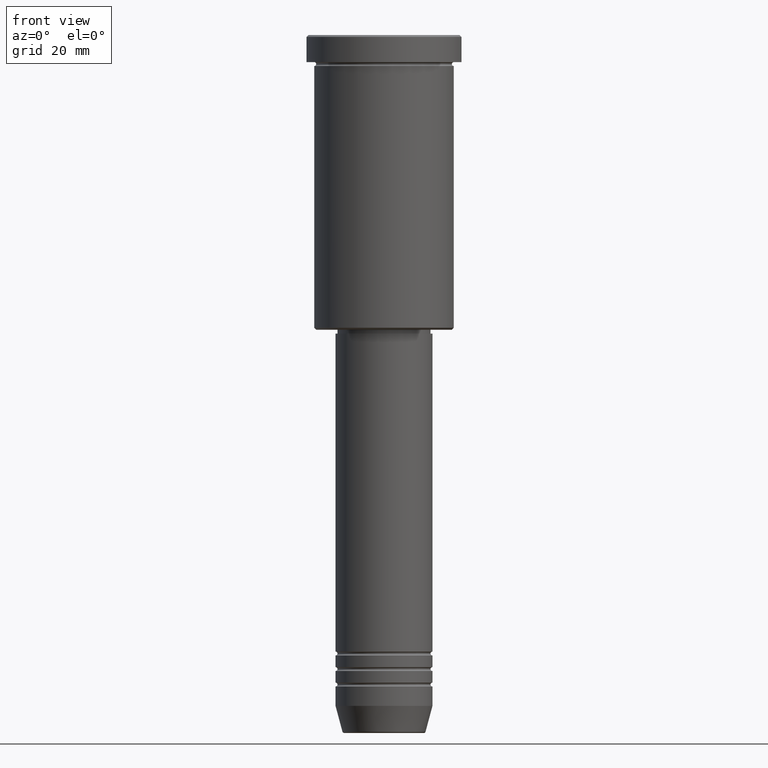
[diagram: clean part render]
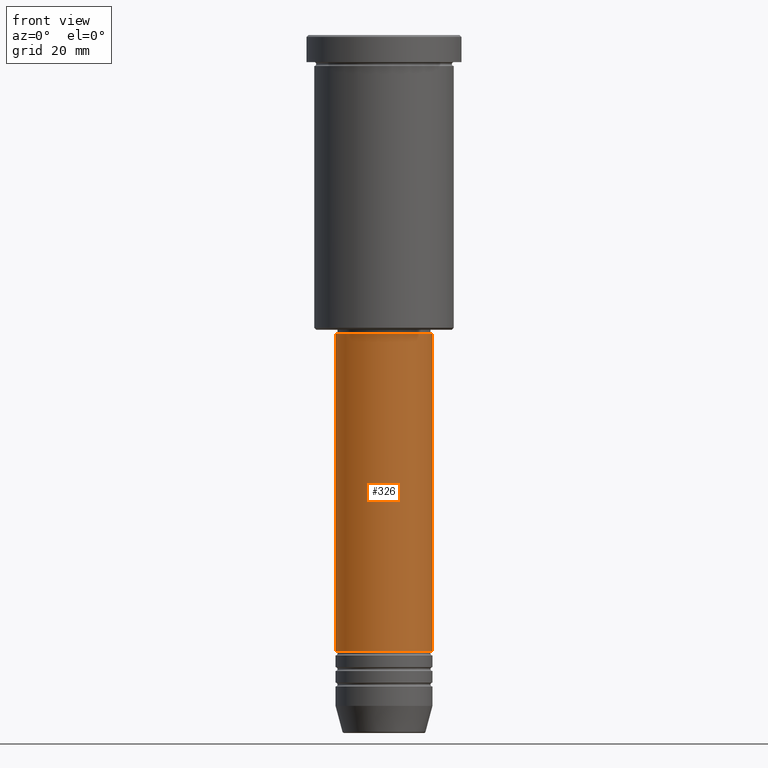
[diagram: same view with one face highlighted and labeled with its STEP entity id]
A machine part, front view. The second image highlights one B-rep face of the part: STEP entity #326.
In plain terms, the highlighted cylindrical surface (partial cylindrical patch) has radius 12.5 mm, axis along (-0, -0, 1).
Its self-contained STEP definition (entity closure, byte-faithful):
#15 = DIRECTION ( 'NONE',  ( 1.000000000000000000, 0.000000000000000000, 0.000000000000000000 ) ) ;
#20 = LINE ( 'NONE', #957, #157 ) ;
#36 = CARTESIAN_POINT ( 'NONE',  ( 12.50000000000000000, 0.000000000000000000, -159.0000000000000000 ) ) ;
#51 = CIRCLE ( 'NONE', #887, 12.50000000000000000 ) ;
#107 = CYLINDRICAL_SURFACE ( 'NONE', #1165, 12.50000000000000000 ) ;
#131 = VECTOR ( 'NONE', #949, 1000.000000000000000 ) ;
#157 = VECTOR ( 'NONE', #592, 1000.000000000000000 ) ;
#180 = EDGE_CURVE ( 'NONE', #451, #986, #1038, .T. ) ;
#241 = ORIENTED_EDGE ( 'NONE', *, *, #1154, .F. ) ;
#277 = AXIS2_PLACEMENT_3D ( 'NONE', #849, #1035, #15 ) ;
#323 = CARTESIAN_POINT ( 'NONE',  ( 0.000000000000000000, 0.000000000000000000, -159.0000000000000000 ) ) ;
#326 = ADVANCED_FACE ( 'NONE', ( #936 ), #107, .T. ) ;
#440 = CARTESIAN_POINT ( 'NONE',  ( -12.50000000000000000, 1.530808498934191521E-15, -159.0000000000000000 ) ) ;
#451 = VERTEX_POINT ( 'NONE', #36 ) ;
#473 = ORIENTED_EDGE ( 'NONE', *, *, #180, .T. ) ;
#486 = DIRECTION ( 'NONE',  ( -0.000000000000000000, -0.000000000000000000, 1.000000000000000000 ) ) ;
#529 = EDGE_LOOP ( 'NONE', ( #241, #737, #473, #1073 ) ) ;
#592 = DIRECTION ( 'NONE',  ( -0.000000000000000000, -0.000000000000000000, 1.000000000000000000 ) ) ;
#596 = CARTESIAN_POINT ( 'NONE',  ( -12.50000000000000000, 1.530808498934191521E-15, -77.00000000000004263 ) ) ;
#625 = VERTEX_POINT ( 'NONE', #596 ) ;
#665 = DIRECTION ( 'NONE',  ( 1.000000000000000000, 0.000000000000000000, 0.000000000000000000 ) ) ;
#683 = DIRECTION ( 'NONE',  ( 1.000000000000000000, 0.000000000000000000, 0.000000000000000000 ) ) ;
#737 = ORIENTED_EDGE ( 'NONE', *, *, #761, .T. ) ;
#757 = CARTESIAN_POINT ( 'NONE',  ( 12.50000000000000000, 0.000000000000000000, 0.000000000000000000 ) ) ;
#761 = EDGE_CURVE ( 'NONE', #780, #451, #51, .T. ) ;
#780 = VERTEX_POINT ( 'NONE', #440 ) ;
#849 = CARTESIAN_POINT ( 'NONE',  ( 0.000000000000000000, 0.000000000000000000, -77.00000000000004263 ) ) ;
#862 = EDGE_CURVE ( 'NONE', #625, #986, #993, .T. ) ;
#883 = CARTESIAN_POINT ( 'NONE',  ( 12.50000000000000000, 0.000000000000000000, -77.00000000000004263 ) ) ;
#887 = AXIS2_PLACEMENT_3D ( 'NONE', #323, #1127, #683 ) ;
#936 = FACE_OUTER_BOUND ( 'NONE', #529, .T. ) ;
#949 = DIRECTION ( 'NONE',  ( -0.000000000000000000, -0.000000000000000000, 1.000000000000000000 ) ) ;
#957 = CARTESIAN_POINT ( 'NONE',  ( -12.50000000000000000, 1.530808498934191521E-15, 0.000000000000000000 ) ) ;
#986 = VERTEX_POINT ( 'NONE', #883 ) ;
#993 = CIRCLE ( 'NONE', #277, 12.50000000000000000 ) ;
#1035 = DIRECTION ( 'NONE',  ( -0.000000000000000000, -0.000000000000000000, 1.000000000000000000 ) ) ;
#1038 = LINE ( 'NONE', #757, #131 ) ;
#1073 = ORIENTED_EDGE ( 'NONE', *, *, #862, .F. ) ;
#1120 = CARTESIAN_POINT ( 'NONE',  ( 0.000000000000000000, 0.000000000000000000, 0.000000000000000000 ) ) ;
#1127 = DIRECTION ( 'NONE',  ( -0.000000000000000000, -0.000000000000000000, 1.000000000000000000 ) ) ;
#1154 = EDGE_CURVE ( 'NONE', #780, #625, #20, .T. ) ;
#1165 = AXIS2_PLACEMENT_3D ( 'NONE', #1120, #486, #665 ) ;